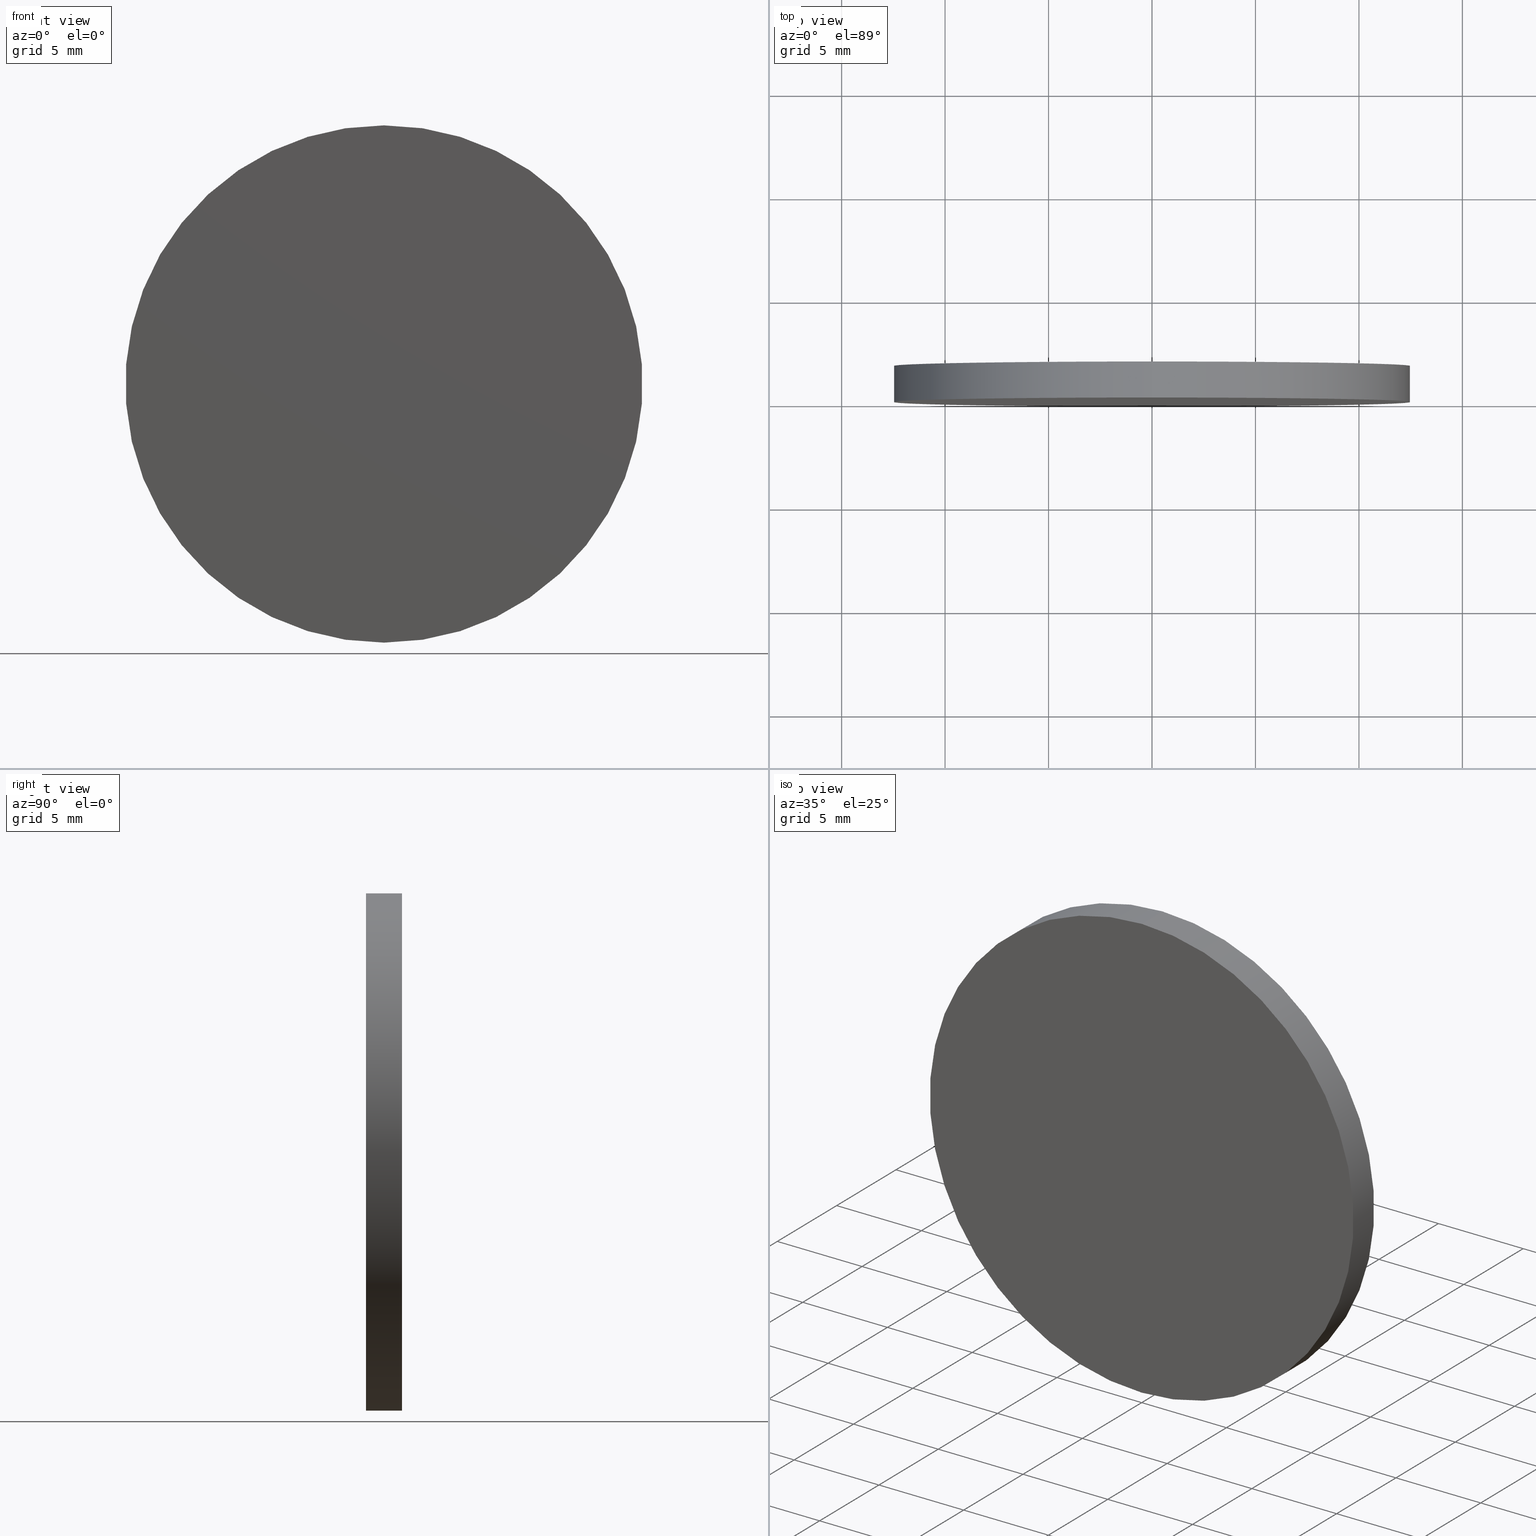
[diagram: canonical four-view strip — front | top / right | iso, engineering-drawing reading convention]
A machine part, canonical four-view strip (front | top / right | iso — engineering-drawing reading convention). The complete STEP part file that produces these views, byte-faithful:
ISO-10303-21;
HEADER;
FILE_DESCRIPTION (( 'STEP AP214' ),
    '1' );
FILE_NAME ('248585.STEP',
    '2019-08-06T02:53:47',
    ( 'user' ),
    ( '΢���й�' ),
    'SwSTEP 2.0',
    'SolidWorks 2016',
    '' );
FILE_SCHEMA (( 'AUTOMOTIVE_DESIGN' ));
ENDSEC;

DATA;
#1 = EDGE_CURVE ( 'NONE', #74, #72, #104, .T. ) ;
#2 = PRODUCT_RELATED_PRODUCT_CATEGORY ( 'part', '', ( #98 ) ) ;
#3 = ORIENTED_EDGE ( 'NONE', *, *, #120, .T. ) ;
#4 = FACE_OUTER_BOUND ( 'NONE', #48, .T. ) ;
#5 = AXIS2_PLACEMENT_3D ( 'NONE', #134, #108, #56 ) ;
#6 = FILL_AREA_STYLE ('',( #75 ) ) ;
#7 = DIRECTION ( 'NONE',  ( 0.0000000000000000000, -0.0000000000000000000, 1.000000000000000000 ) ) ;
#8 = CARTESIAN_POINT ( 'NONE',  ( 0.0000000000000000000, 0.0000000000000000000, 0.0000000000000000000 ) ) ;
#9 = ORIENTED_EDGE ( 'NONE', *, *, #114, .F. ) ;
#10 = STYLED_ITEM ( 'NONE', ( #11 ), #62 ) ;
#11 = PRESENTATION_STYLE_ASSIGNMENT (( #80 ) ) ;
#12 = DIRECTION ( 'NONE',  ( 1.000000000000000000, 0.0000000000000000000, 0.0000000000000000000 ) ) ;
#13 = DIRECTION ( 'NONE',  ( 0.0000000000000000000, 1.000000000000000000, 0.0000000000000000000 ) ) ;
#14 =( LENGTH_UNIT ( ) NAMED_UNIT ( * ) SI_UNIT ( .MILLI., .METRE. ) );
#15 = EDGE_LOOP ( 'NONE', ( #81, #25, #32, #132 ) ) ;
#16 = UNCERTAINTY_MEASURE_WITH_UNIT (LENGTH_MEASURE( 1.000000000000000100E-005 ), #65, 'distance_accuracy_value', 'NONE');
#17 = PRESENTATION_LAYER_ASSIGNMENT (  '', '', ( #73 ) ) ;
#18 = CIRCLE ( 'NONE', #94, 12.50000000000000000 ) ;
#19 = PRESENTATION_STYLE_ASSIGNMENT (( #85 ) ) ;
#20 = MECHANICAL_DESIGN_GEOMETRIC_PRESENTATION_REPRESENTATION (  '', ( #10 ), #71 ) ;
#21 = SURFACE_SIDE_STYLE ('',( #113 ) ) ;
#22 = CARTESIAN_POINT ( 'NONE',  ( 0.0000000000000000000, 0.0000000000000000000, 0.0000000000000000000 ) ) ;
#23 = DIRECTION ( 'NONE',  ( 0.0000000000000000000, -0.0000000000000000000, 1.000000000000000000 ) ) ;
#24 = UNCERTAINTY_MEASURE_WITH_UNIT (LENGTH_MEASURE( 1.000000000000000100E-005 ), #59, 'distance_accuracy_value', 'NONE');
#25 = ORIENTED_EDGE ( 'NONE', *, *, #97, .F. ) ;
#26 = APPLICATION_CONTEXT ( 'automotive_design' ) ;
#27 = CARTESIAN_POINT ( 'NONE',  ( 0.0000000000000000000, 1.740000000000000000, 0.0000000000000000000 ) ) ;
#28 = SURFACE_SIDE_STYLE ('',( #42 ) ) ;
#29 = CLOSED_SHELL ( 'NONE', ( #83, #130, #127, #123 ) ) ;
#30 = APPLICATION_CONTEXT ( 'automotive_design' ) ;
#31 = DIRECTION ( 'NONE',  ( 0.0000000000000000000, 0.0000000000000000000, 1.000000000000000000 ) ) ;
#32 = ORIENTED_EDGE ( 'NONE', *, *, #103, .T. ) ;
#33 = PRODUCT_DEFINITION ( 'δ֪', '', #76, #99 ) ;
#34 = PLANE ( 'NONE',  #110 ) ;
#35 = PRESENTATION_LAYER_ASSIGNMENT (  '', '', ( #10 ) ) ;
#36 = CIRCLE ( 'NONE', #44, 12.50000000000000000 ) ;
#37 = DIRECTION ( 'NONE',  ( -0.0000000000000000000, -1.000000000000000000, -0.0000000000000000000 ) ) ;
#38 = CARTESIAN_POINT ( 'NONE',  ( 0.0000000000000000000, 1.740000000000000000, 0.0000000000000000000 ) ) ;
#39 = VERTEX_POINT ( 'NONE', #101 ) ;
#40 = FACE_OUTER_BOUND ( 'NONE', #77, .T. ) ;
#41 = CARTESIAN_POINT ( 'NONE',  ( 1.530808498934191500E-015, 0.0000000000000000000, 12.50000000000000000 ) ) ;
#42 = SURFACE_STYLE_FILL_AREA ( #91 ) ;
#43 = AXIS2_PLACEMENT_3D ( 'NONE', #86, #68, #12 ) ;
#44 = AXIS2_PLACEMENT_3D ( 'NONE', #27, #13, #92 ) ;
#45 = ORIENTED_EDGE ( 'NONE', *, *, #114, .T. ) ;
#46 = MECHANICAL_DESIGN_GEOMETRIC_PRESENTATION_REPRESENTATION (  '', ( #73 ), #139 ) ;
#47 = DIRECTION ( 'NONE',  ( 0.0000000000000000000, 1.000000000000000000, 0.0000000000000000000 ) ) ;
#48 = EDGE_LOOP ( 'NONE', ( #111, #84, #45, #52 ) ) ;
#49 =( NAMED_UNIT ( * ) SI_UNIT ( $, .STERADIAN. ) SOLID_ANGLE_UNIT ( ) );
#50 = DIRECTION ( 'NONE',  ( 0.0000000000000000000, 0.0000000000000000000, -1.000000000000000000 ) ) ;
#51 = CARTESIAN_POINT ( 'NONE',  ( 0.0000000000000000000, 1.740000000000000000, -12.50000000000000000 ) ) ;
#52 = ORIENTED_EDGE ( 'NONE', *, *, #103, .F. ) ;
#53 = AXIS2_PLACEMENT_3D ( 'NONE', #67, #66, #7 ) ;
#54 = VERTEX_POINT ( 'NONE', #51 ) ;
#55 =( NAMED_UNIT ( * ) SI_UNIT ( $, .STERADIAN. ) SOLID_ANGLE_UNIT ( ) );
#56 = DIRECTION ( 'NONE',  ( 0.0000000000000000000, 0.0000000000000000000, -1.000000000000000000 ) ) ;
#57 = PRODUCT_DEFINITION_SHAPE ( 'NONE', 'NONE',  #33 ) ;
#58 = DIRECTION ( 'NONE',  ( 0.0000000000000000000, 1.000000000000000000, 0.0000000000000000000 ) ) ;
#59 =( LENGTH_UNIT ( ) NAMED_UNIT ( * ) SI_UNIT ( .MILLI., .METRE. ) );
#60 = CIRCLE ( 'NONE', #88, 12.50000000000000000 ) ;
#61 = CARTESIAN_POINT ( 'NONE',  ( 0.0000000000000000000, 1.740000000000000000, 0.0000000000000000000 ) ) ;
#62 = MANIFOLD_SOLID_BREP ( '͹̨-����1', #29 ) ;
#63 = EDGE_LOOP ( 'NONE', ( #128, #9 ) ) ;
#64 = VECTOR ( 'NONE', #100, 1000.000000000000000 ) ;
#65 =( LENGTH_UNIT ( ) NAMED_UNIT ( * ) SI_UNIT ( .MILLI., .METRE. ) );
#66 = DIRECTION ( 'NONE',  ( 0.0000000000000000000, 1.000000000000000000, 0.0000000000000000000 ) ) ;
#67 = CARTESIAN_POINT ( 'NONE',  ( 0.0000000000000000000, 1.740000000000000000, 0.0000000000000000000 ) ) ;
#68 = DIRECTION ( 'NONE',  ( 0.0000000000000000000, 0.0000000000000000000, 1.000000000000000000 ) ) ;
#69 = FACE_OUTER_BOUND ( 'NONE', #63, .T. ) ;
#70 = CARTESIAN_POINT ( 'NONE',  ( 0.0000000000000000000, 0.0000000000000000000, 0.0000000000000000000 ) ) ;
#71 =( GEOMETRIC_REPRESENTATION_CONTEXT ( 3 ) GLOBAL_UNCERTAINTY_ASSIGNED_CONTEXT ( ( #129 ) ) GLOBAL_UNIT_ASSIGNED_CONTEXT ( ( #14, #124, #49 ) ) REPRESENTATION_CONTEXT ( 'NONE', 'WORKASPACE' ) );
#72 = VERTEX_POINT ( 'NONE', #41 ) ;
#73 = STYLED_ITEM ( 'NONE', ( #19 ), #82 ) ;
#74 = VERTEX_POINT ( 'NONE', #106 ) ;
#75 = FILL_AREA_STYLE_COLOUR ( '', #87 ) ;
#76 = PRODUCT_DEFINITION_FORMATION_WITH_SPECIFIED_SOURCE ( '�κ�', '', #98, .NOT_KNOWN. ) ;
#77 = EDGE_LOOP ( 'NONE', ( #137, #3 ) ) ;
#78 = PRODUCT_CONTEXT ( 'NONE', #30, 'mechanical' ) ;
#79 = CARTESIAN_POINT ( 'NONE',  ( 0.0000000000000000000, 1.740000000000000000, -12.50000000000000000 ) ) ;
#80 = SURFACE_STYLE_USAGE ( .BOTH. , #28 ) ;
#81 = ORIENTED_EDGE ( 'NONE', *, *, #1, .F. ) ;
#82 = ADVANCED_BREP_SHAPE_REPRESENTATION ( '248585', ( #62, #43 ), #126 ) ;
#83 = ADVANCED_FACE ( 'NONE', ( #4 ), #90, .T. ) ;
#84 = ORIENTED_EDGE ( 'NONE', *, *, #1, .T. ) ;
#85 = SURFACE_STYLE_USAGE ( .BOTH. , #21 ) ;
#86 = CARTESIAN_POINT ( 'NONE',  ( 0.0000000000000000000, 0.0000000000000000000, 0.0000000000000000000 ) ) ;
#87 = COLOUR_RGB ( '',1.000000000000000000, 1.000000000000000000, 1.000000000000000000 ) ;
#88 = AXIS2_PLACEMENT_3D ( 'NONE', #8, #58, #135 ) ;
#89 =( NAMED_UNIT ( * ) SI_UNIT ( $, .STERADIAN. ) SOLID_ANGLE_UNIT ( ) );
#90 = CYLINDRICAL_SURFACE ( 'NONE', #136, 12.50000000000000000 ) ;
#91 = FILL_AREA_STYLE ('',( #140 ) ) ;
#92 = DIRECTION ( 'NONE',  ( 0.0000000000000000000, 0.0000000000000000000, 1.000000000000000000 ) ) ;
#93 = CIRCLE ( 'NONE', #102, 12.50000000000000000 ) ;
#94 = AXIS2_PLACEMENT_3D ( 'NONE', #38, #109, #31 ) ;
#95 = VECTOR ( 'NONE', #37, 1000.000000000000000 ) ;
#96 = DIRECTION ( 'NONE',  ( 0.0000000000000000000, 1.000000000000000000, 0.0000000000000000000 ) ) ;
#97 = EDGE_CURVE ( 'NONE', #54, #74, #36, .T. ) ;
#98 = PRODUCT ( '248585', '248585', '', ( #78 ) ) ;
#99 = PRODUCT_DEFINITION_CONTEXT ( 'detailed design', #26, 'design' ) ;
#100 = DIRECTION ( 'NONE',  ( -0.0000000000000000000, -1.000000000000000000, -0.0000000000000000000 ) ) ;
#101 = CARTESIAN_POINT ( 'NONE',  ( 0.0000000000000000000, 0.0000000000000000000, -12.50000000000000000 ) ) ;
#102 = AXIS2_PLACEMENT_3D ( 'NONE', #22, #47, #133 ) ;
#103 = EDGE_CURVE ( 'NONE', #54, #39, #117, .T. ) ;
#104 = LINE ( 'NONE', #112, #95 ) ;
#105 = SHAPE_DEFINITION_REPRESENTATION ( #57, #82 ) ;
#106 = CARTESIAN_POINT ( 'NONE',  ( 1.530808498934191500E-015, 1.740000000000000000, 12.50000000000000000 ) ) ;
#107 = APPLICATION_PROTOCOL_DEFINITION ( 'draft international standard', 'automotive_design', 1998, #30 ) ;
#108 = DIRECTION ( 'NONE',  ( -0.0000000000000000000, -1.000000000000000000, -0.0000000000000000000 ) ) ;
#109 = DIRECTION ( 'NONE',  ( 0.0000000000000000000, 1.000000000000000000, 0.0000000000000000000 ) ) ;
#110 = AXIS2_PLACEMENT_3D ( 'NONE', #70, #96, #23 ) ;
#111 = ORIENTED_EDGE ( 'NONE', *, *, #120, .F. ) ;
#112 = CARTESIAN_POINT ( 'NONE',  ( 1.530808498934191500E-015, 1.740000000000000000, 12.50000000000000000 ) ) ;
#113 = SURFACE_STYLE_FILL_AREA ( #6 ) ;
#114 = EDGE_CURVE ( 'NONE', #72, #39, #60, .T. ) ;
#115 = CYLINDRICAL_SURFACE ( 'NONE', #5, 12.50000000000000000 ) ;
#116 = COLOUR_RGB ( '',1.000000000000000000, 1.000000000000000000, 1.000000000000000000 ) ;
#117 = LINE ( 'NONE', #79, #64 ) ;
#118 =( NAMED_UNIT ( * ) PLANE_ANGLE_UNIT ( ) SI_UNIT ( $, .RADIAN. ) );
#119 = PLANE ( 'NONE',  #53 ) ;
#120 = EDGE_CURVE ( 'NONE', #74, #54, #18, .T. ) ;
#121 = APPLICATION_PROTOCOL_DEFINITION ( 'draft international standard', 'automotive_design', 1998, #26 ) ;
#122 = FACE_OUTER_BOUND ( 'NONE', #15, .T. ) ;
#123 = ADVANCED_FACE ( 'NONE', ( #69 ), #34, .F. ) ;
#124 =( NAMED_UNIT ( * ) PLANE_ANGLE_UNIT ( ) SI_UNIT ( $, .RADIAN. ) );
#125 = DIRECTION ( 'NONE',  ( -0.0000000000000000000, -1.000000000000000000, -0.0000000000000000000 ) ) ;
#126 =( GEOMETRIC_REPRESENTATION_CONTEXT ( 3 ) GLOBAL_UNCERTAINTY_ASSIGNED_CONTEXT ( ( #16 ) ) GLOBAL_UNIT_ASSIGNED_CONTEXT ( ( #65, #118, #55 ) ) REPRESENTATION_CONTEXT ( 'NONE', 'WORKASPACE' ) );
#127 = ADVANCED_FACE ( 'NONE', ( #40 ), #119, .T. ) ;
#128 = ORIENTED_EDGE ( 'NONE', *, *, #131, .F. ) ;
#129 = UNCERTAINTY_MEASURE_WITH_UNIT (LENGTH_MEASURE( 1.000000000000000100E-005 ), #14, 'distance_accuracy_value', 'NONE');
#130 = ADVANCED_FACE ( 'NONE', ( #122 ), #115, .T. ) ;
#131 = EDGE_CURVE ( 'NONE', #39, #72, #93, .T. ) ;
#132 = ORIENTED_EDGE ( 'NONE', *, *, #131, .T. ) ;
#133 = DIRECTION ( 'NONE',  ( 0.0000000000000000000, 0.0000000000000000000, 1.000000000000000000 ) ) ;
#134 = CARTESIAN_POINT ( 'NONE',  ( 0.0000000000000000000, 1.740000000000000000, 0.0000000000000000000 ) ) ;
#135 = DIRECTION ( 'NONE',  ( 0.0000000000000000000, 0.0000000000000000000, 1.000000000000000000 ) ) ;
#136 = AXIS2_PLACEMENT_3D ( 'NONE', #61, #125, #50 ) ;
#137 = ORIENTED_EDGE ( 'NONE', *, *, #97, .T. ) ;
#138 =( NAMED_UNIT ( * ) PLANE_ANGLE_UNIT ( ) SI_UNIT ( $, .RADIAN. ) );
#139 =( GEOMETRIC_REPRESENTATION_CONTEXT ( 3 ) GLOBAL_UNCERTAINTY_ASSIGNED_CONTEXT ( ( #24 ) ) GLOBAL_UNIT_ASSIGNED_CONTEXT ( ( #59, #138, #89 ) ) REPRESENTATION_CONTEXT ( 'NONE', 'WORKASPACE' ) );
#140 = FILL_AREA_STYLE_COLOUR ( '', #116 ) ;
ENDSEC;
END-ISO-10303-21;
